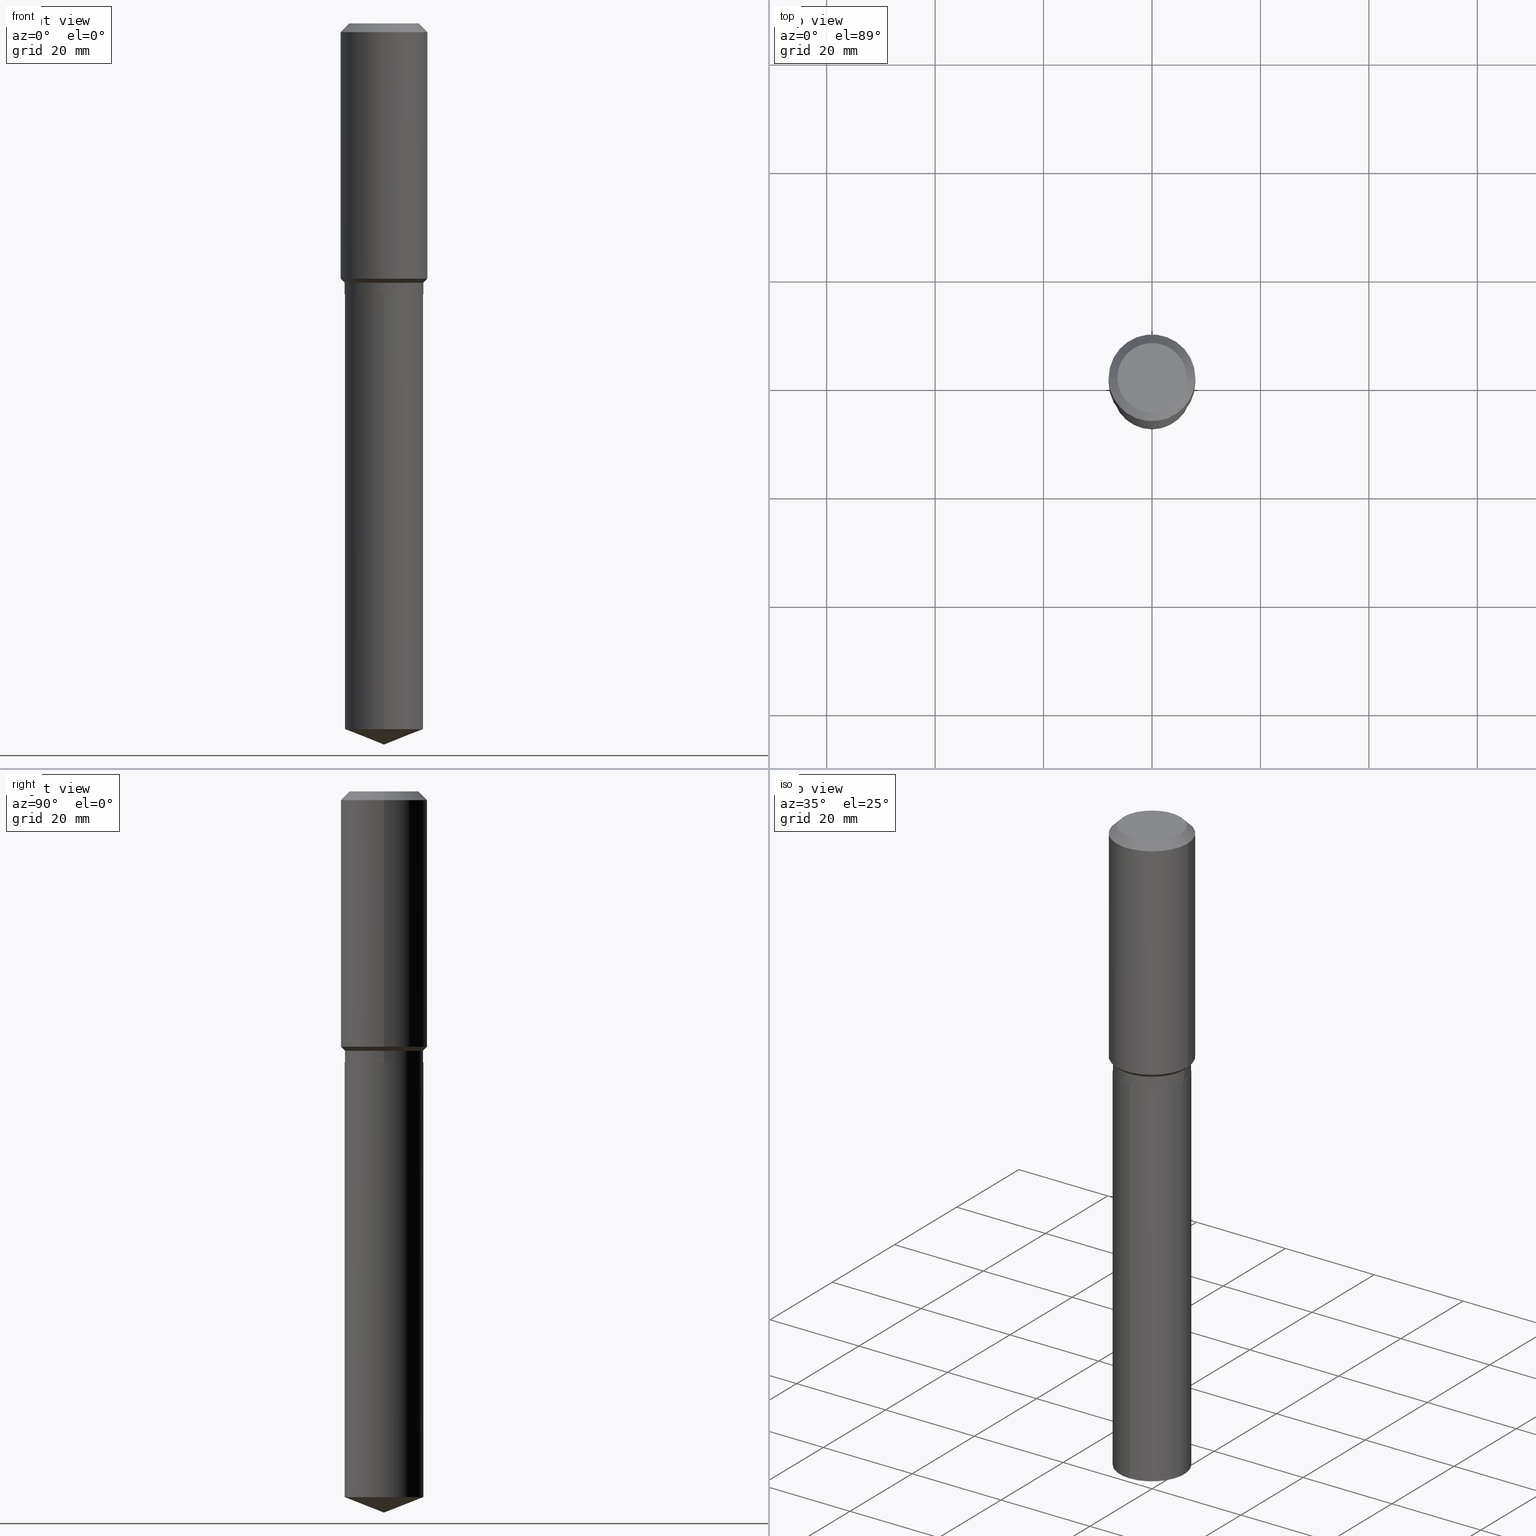
[diagram: canonical four-view strip — front | top / right | iso, engineering-drawing reading convention]
A machine part, canonical four-view strip (front | top / right | iso — engineering-drawing reading convention). The complete STEP part file that produces these views, byte-faithful:
ISO-10303-21;
HEADER;
FILE_DESCRIPTION (( 'STEP AP203' ),
    '1' );
FILE_NAME ('66600.STEP',
    '2024-04-25T01:45:45',
    ( '' ),
    ( '' ),
    'SwSTEP 2.0',
    'SolidWorks 2023',
    '' );
FILE_SCHEMA (( 'CONFIG_CONTROL_DESIGN' ));
ENDSEC;

DATA;
#1 = ORIENTED_EDGE ( 'NONE', *, *, #22, .F. ) ;
#2 = ORIENTED_EDGE ( 'NONE', *, *, #478, .T. ) ;
#3 = VECTOR ( 'NONE', #181, 39.37007874015748143 ) ;
#4 = AXIS2_PLACEMENT_3D ( 'NONE', #250, #357, #217 ) ;
#5 = DATE_AND_TIME ( #417, #148 ) ;
#6 = ORIENTED_EDGE ( 'NONE', *, *, #393, .F. ) ;
#7 = CALENDAR_DATE ( 2024, 24, 4 ) ;
#8 = ORIENTED_EDGE ( 'NONE', *, *, #483, .T. ) ;
#9 = APPROVAL ( #173, 'UNSPECIFIED' ) ;
#10 = ORIENTED_EDGE ( 'NONE', *, *, #410, .T. ) ;
#11 = FACE_OUTER_BOUND ( 'NONE', #35, .T. ) ;
#12 = ORIENTED_EDGE ( 'NONE', *, *, #485, .T. ) ;
#13 = AXIS2_PLACEMENT_3D ( 'NONE', #252, #286, #219 ) ;
#14 = CALENDAR_DATE ( 2024, 24, 4 ) ;
#15 = DIRECTION ( 'NONE',  ( -6.982962677686265922E-15, -1.000000000000000000, 3.828128209723963046E-15 ) ) ;
#16 = ORIENTED_EDGE ( 'NONE', *, *, #158, .T. ) ;
#17 =( LENGTH_UNIT ( ) NAMED_UNIT ( * ) SI_UNIT ( $, .METRE. ) );
#18 = APPROVAL_STATUS ( 'not_yet_approved' ) ;
#19 = CARTESIAN_POINT ( 'NONE',  ( 4.813416251214202584E-29, -6.872282719244960739E-15, -1.968299999999999272 ) ) ;
#20 = VERTEX_POINT ( 'NONE', #311 ) ;
#21 = PRODUCT ( '66600', '66600', '', ( #308 ) ) ;
#22 = EDGE_CURVE ( 'NONE', #298, #341, #463, .T. ) ;
#23 = DIRECTION ( 'NONE',  ( 0.000000000000000000, 0.000000000000000000, 1.000000000000000000 ) ) ;
#24 = CARTESIAN_POINT ( 'NONE',  ( 2.028244239227331673E-15, 0.2854499999999822180, -5.123558254735715245 ) ) ;
#25 = CIRCLE ( 'NONE', #400, 0.2849499999999999811 ) ;
#26 = CIRCLE ( 'NONE', #156, 0.2854499999999999815 ) ;
#27 = DIRECTION ( 'NONE',  ( -2.445324435619551489E-29, 3.491688085710125580E-15, 1.000000000000000000 ) ) ;
#28 = DIRECTION ( 'NONE',  ( -2.445324435619551208E-29, 3.491688085710125580E-15, 1.000000000000000000 ) ) ;
#29 = DIRECTION ( 'NONE',  ( 2.445468806185136597E-29, -3.491481338843145583E-15, -1.000000000000000000 ) ) ;
#30 = CARTESIAN_POINT ( 'NONE',  ( -0.3149500000000001743, 2.237854346276436774E-15, -1.549218606675783237E-29 ) ) ;
#31 = CC_DESIGN_PERSON_AND_ORGANIZATION_ASSIGNMENT ( #53, #457, ( #379 ) ) ;
#32 = EDGE_LOOP ( 'NONE', ( #16, #201, #152, #85 ) ) ;
#33 = LINE ( 'NONE', #30, #127 ) ;
#34 = AXIS2_PLACEMENT_3D ( 'NONE', #134, #273, #472 ) ;
#35 = EDGE_LOOP ( 'NONE', ( #129, #468, #396, #266 ) ) ;
#36 = AXIS2_PLACEMENT_3D ( 'NONE', #122, #23, #143 ) ;
#37 = ORIENTED_EDGE ( 'NONE', *, *, #381, .T. ) ;
#38 = PERSON_AND_ORGANIZATION_ROLE ( 'design_owner' ) ;
#39 = APPLICATION_PROTOCOL_DEFINITION ( 'international standard', 'config_control_design', 1994, #46 ) ;
#40 = EDGE_CURVE ( 'NONE', #175, #239, #192, .T. ) ;
#41 = VERTEX_POINT ( 'NONE', #71 ) ;
#42 = VECTOR ( 'NONE', #287, 39.37007874015748143 ) ;
#43 = EDGE_LOOP ( 'NONE', ( #70, #79 ) ) ;
#44 = ORIENTED_EDGE ( 'NONE', *, *, #336, .T. ) ;
#45 = ORIENTED_EDGE ( 'NONE', *, *, #376, .T. ) ;
#46 = APPLICATION_CONTEXT ( 'configuration controlled 3d designs of mechanical parts and assemblies' ) ;
#47 = PERSON_AND_ORGANIZATION_ROLE ( 'design_supplier' ) ;
#48 = FACE_OUTER_BOUND ( 'NONE', #202, .T. ) ;
#49 = VECTOR ( 'NONE', #364, 39.37007874015748143 ) ;
#50 = ORIENTED_EDGE ( 'NONE', *, *, #422, .T. ) ;
#51 = LINE ( 'NONE', #402, #360 ) ;
#52 = ORIENTED_EDGE ( 'NONE', *, *, #410, .F. ) ;
#53 = PERSON_AND_ORGANIZATION ( #154, #123 ) ;
#54 = CARTESIAN_POINT ( 'NONE',  ( 4.813416251214202584E-29, -6.872282719244960739E-15, -1.968299999999999272 ) ) ;
#55 = ORIENTED_EDGE ( 'NONE', *, *, #264, .F. ) ;
#56 =( NAMED_UNIT ( * ) PLANE_ANGLE_UNIT ( ) SI_UNIT ( $, .RADIAN. ) );
#57 = CARTESIAN_POINT ( 'NONE',  ( 4.603350480762900433E-29, -6.572364472238336171E-15, -1.882399999999999629 ) ) ;
#58 = ADVANCED_FACE ( 'NONE', ( #283 ), #194, .F. ) ;
#59 = CARTESIAN_POINT ( 'NONE',  ( -8.346861266608468527E-28, 1.191859629935574637E-13, 34.13407874015748433 ) ) ;
#60 = ORIENTED_EDGE ( 'NONE', *, *, #366, .T. ) ;
#61 = DIRECTION ( 'NONE',  ( -2.445468806185136597E-29, 3.491481338843145583E-15, 1.000000000000000000 ) ) ;
#62 = EDGE_CURVE ( 'NONE', #41, #423, #337, .T. ) ;
#63 = ORIENTED_EDGE ( 'NONE', *, *, #162, .T. ) ;
#64 = CLOSED_SHELL ( 'NONE', ( #77, #200, #306, #245, #161 ) ) ;
#65 = DIRECTION ( 'NONE',  ( -2.445468806185136597E-29, 3.491481338843145583E-15, 1.000000000000000000 ) ) ;
#66 = LOCAL_TIME ( 21, 45, 45.00000000000000000, #378 ) ;
#67 = CARTESIAN_POINT ( 'NONE',  ( 2.028244239227331278E-15, 0.2854499999999930981, -1.968300000000000383 ) ) ;
#68 = DIRECTION ( 'NONE',  ( 1.000000000000000000, -6.982962677686265922E-15, 4.876176775795936353E-29 ) ) ;
#69 = LINE ( 'NONE', #362, #114 ) ;
#70 = ORIENTED_EDGE ( 'NONE', *, *, #204, .F. ) ;
#71 = CARTESIAN_POINT ( 'NONE',  ( -1.993286696345419921E-15, -0.2854500000000179671, -5.123558254735712580 ) ) ;
#72 = AXIS2_PLACEMENT_3D ( 'NONE', #444, #221, #447 ) ;
#73 = LINE ( 'NONE', #117, #216 ) ;
#74 = VECTOR ( 'NONE', #28, 39.37007874015748143 ) ;
#75 = DIRECTION ( 'NONE',  ( 1.000000000000000000, -6.982962677686269077E-15, 0.000000000000000000 ) ) ;
#76 = DIRECTION ( 'NONE',  ( -0.7071067811865453523, 2.468850131082234184E-15, -0.7071067811865496822 ) ) ;
#77 = ADVANCED_FACE ( 'NONE', ( #180 ), #112, .T. ) ;
#78 = EDGE_CURVE ( 'NONE', #490, #333, #69, .T. ) ;
#79 = ORIENTED_EDGE ( 'NONE', *, *, #191, .F. ) ;
#80 = EDGE_LOOP ( 'NONE', ( #256, #44 ) ) ;
#81 = AXIS2_PLACEMENT_3D ( 'NONE', #397, #277, #355 ) ;
#82 = EDGE_LOOP ( 'NONE', ( #6, #91, #50, #265 ) ) ;
#83 = PRODUCT_RELATED_PRODUCT_CATEGORY ( 'detail', '', ( #21 ) ) ;
#84 = ORIENTED_EDGE ( 'NONE', *, *, #422, .F. ) ;
#85 = ORIENTED_EDGE ( 'NONE', *, *, #261, .F. ) ;
#86 = APPROVAL_PERSON_ORGANIZATION ( #260, #340, #451 ) ;
#87 = FACE_OUTER_BOUND ( 'NONE', #296, .T. ) ;
#88 = PERSON_AND_ORGANIZATION ( #154, #123 ) ;
#89 = DIRECTION ( 'NONE',  ( -2.445468806185136597E-29, 3.491481338843145583E-15, 1.000000000000000000 ) ) ;
#90 = ORIENTED_EDGE ( 'NONE', *, *, #473, .F. ) ;
#91 = ORIENTED_EDGE ( 'NONE', *, *, #232, .T. ) ;
#92 = DIRECTION ( 'NONE',  ( 1.000000000000000000, -6.982962677686265922E-15, 0.000000000000000000 ) ) ;
#93 = ORIENTED_EDGE ( 'NONE', *, *, #162, .F. ) ;
#94 =( CONVERSION_BASED_UNIT ( 'INCH', #275 ) LENGTH_UNIT ( ) NAMED_UNIT ( #229 ) );
#95 = MANIFOLD_SOLID_BREP ( 'Body-Move/Copy2[1]', #64 ) ;
#96 = APPROVAL_ROLE ( '' ) ;
#97 = LINE ( 'NONE', #391, #3 ) ;
#98 = CYLINDRICAL_SURFACE ( 'NONE', #409, 0.3149500000000001743 ) ;
#99 = CYLINDRICAL_SURFACE ( 'NONE', #233, 0.2854499999999999815 ) ;
#100 = EDGE_LOOP ( 'NONE', ( #209, #130, #168, #226 ) ) ;
#101 = DIRECTION ( 'NONE',  ( 1.000000000000000000, -6.982962677686264344E-15, 0.000000000000000000 ) ) ;
#102 = CARTESIAN_POINT ( 'NONE',  ( 0.3149500000000002298, -8.668649868079754176E-15, -1.852899999999999547 ) ) ;
#103 = AXIS2_PLACEMENT_3D ( 'NONE', #462, #27, #206 ) ;
#104 = CARTESIAN_POINT ( 'NONE',  ( 1.280429205764840004E-28, -1.828166493706166554E-14, -5.235999999999999766 ) ) ;
#105 = DIRECTION ( 'NONE',  ( 1.000000000000000000, -6.982962677686266711E-15, 4.876115136096691995E-29 ) ) ;
#106 = VECTOR ( 'NONE', #183, 39.37007874015748143 ) ;
#107 = CARTESIAN_POINT ( 'NONE',  ( -0.2849499999999999811, -4.847591193696555000E-15, -1.968299999999999272 ) ) ;
#108 = CYLINDRICAL_SURFACE ( 'NONE', #368, 0.2854499999999999815 ) ;
#109 =( NAMED_UNIT ( * ) SI_UNIT ( $, .STERADIAN. ) SOLID_ANGLE_UNIT ( ) );
#110 = ADVANCED_FACE ( 'NONE', ( #153 ), #108, .T. ) ;
#111 = DIRECTION ( 'NONE',  ( -2.445468806185136597E-29, 3.491481338843145583E-15, 1.000000000000000000 ) ) ;
#112 = CYLINDRICAL_SURFACE ( 'NONE', #290, 0.2854499999999999815 ) ;
#113 = EDGE_CURVE ( 'NONE', #138, #377, #33, .T. ) ;
#114 = VECTOR ( 'NONE', #324, 39.37007874015748143 ) ;
#115 = LINE ( 'NONE', #259, #241 ) ;
#116 = VECTOR ( 'NONE', #450, 39.37007874015748143 ) ;
#117 = CARTESIAN_POINT ( 'NONE',  ( -0.3149500000000000077, 1.979355685803558833E-15, -0.06299000000000037902 ) ) ;
#118 = PERSON_AND_ORGANIZATION ( #154, #123 ) ;
#119 = PERSON_AND_ORGANIZATION_ROLE ( 'creator' ) ;
#120 = CC_DESIGN_PERSON_AND_ORGANIZATION_ASSIGNMENT ( #118, #38, ( #21 ) ) ;
#121 = CONICAL_SURFACE ( 'NONE', #348, 0.2854499999999999815, 0.7853981633974511656 ) ;
#122 = CARTESIAN_POINT ( 'NONE',  ( 0.000000000000000000, 0.000000000000000000, 0.000000000000000000 ) ) ;
#123 = ORGANIZATION ( 'UNSPECIFIED', 'UNSPECIFIED', '' ) ;
#124 = PERSON_AND_ORGANIZATION ( #154, #123 ) ;
#125 = FACE_OUTER_BOUND ( 'NONE', #280, .T. ) ;
#126 = PERSON_AND_ORGANIZATION_ROLE ( 'classification_officer' ) ;
#127 = VECTOR ( 'NONE', #220, 39.37007874015748143 ) ;
#128 = ORIENTED_EDGE ( 'NONE', *, *, #22, .T. ) ;
#129 = ORIENTED_EDGE ( 'NONE', *, *, #482, .F. ) ;
#130 = ORIENTED_EDGE ( 'NONE', *, *, #482, .T. ) ;
#131 = DIRECTION ( 'NONE',  ( -2.445468806185136597E-29, 3.491481338843145583E-15, 1.000000000000000000 ) ) ;
#132 = ORIENTED_EDGE ( 'NONE', *, *, #232, .F. ) ;
#133 = DATE_TIME_ROLE ( 'creation_date' ) ;
#134 = CARTESIAN_POINT ( 'NONE',  ( 1.252904636220974538E-28, -1.788946037464417969E-14, -5.123558254735714357 ) ) ;
#135 = LINE ( 'NONE', #139, #160 ) ;
#136 = DIRECTION ( 'NONE',  ( -2.445324435619551489E-29, 3.491688085710125580E-15, 1.000000000000000000 ) ) ;
#137 = CIRCLE ( 'NONE', #267, 0.2849499999999999811 ) ;
#138 = VERTEX_POINT ( 'NONE', #411 ) ;
#139 = CARTESIAN_POINT ( 'NONE',  ( -0.2854499999999999815, -4.544120233011130322E-15, -1.882399999999999629 ) ) ;
#140 = EDGE_LOOP ( 'NONE', ( #304, #271, #269, #346 ) ) ;
#141 = LINE ( 'NONE', #398, #375 ) ;
#142 = CARTESIAN_POINT ( 'NONE',  ( 4.813416251214202584E-29, -6.872282719244960739E-15, -1.968299999999999272 ) ) ;
#143 = DIRECTION ( 'NONE',  ( 1.000000000000000000, 0.000000000000000000, 0.000000000000000000 ) ) ;
#144 = CARTESIAN_POINT ( 'NONE',  ( 0.2849499999999999811, -8.862077934251663082E-15, -1.968299999999999272 ) ) ;
#145 = CARTESIAN_POINT ( 'NONE',  ( 4.813416251214202584E-29, -6.872282719244960739E-15, -1.968299999999999272 ) ) ;
#146 = CONICAL_SURFACE ( 'NONE', #81, 0.3149500000000000077, 0.7853981633974452814 ) ;
#147 = CARTESIAN_POINT ( 'NONE',  ( 4.531209150980438038E-29, -6.469365772742462727E-15, -1.852899999999999547 ) ) ;
#148 = LOCAL_TIME ( 21, 45, 45.00000000000000000, #419 ) ;
#149 = EDGE_CURVE ( 'NONE', #175, #341, #359, .T. ) ;
#150 = CARTESIAN_POINT ( 'NONE',  ( 4.813416251214202584E-29, -6.872282719244960739E-15, -1.968299999999999272 ) ) ;
#151 = EDGE_CURVE ( 'NONE', #351, #458, #469, .T. ) ;
#152 = ORIENTED_EDGE ( 'NONE', *, *, #478, .F. ) ;
#153 = FACE_OUTER_BOUND ( 'NONE', #347, .T. ) ;
#154 = PERSON ( 'UNSPECIFIED', 'UNSPECIFIED', 'UNSPECIFIED', ('UNSPECIFIED'), ('UNSPECIFIED'), ('UNSPECIFIED') ) ;
#155 = CIRCLE ( 'NONE', #34, 0.2854499999999999815 ) ;
#156 = AXIS2_PLACEMENT_3D ( 'NONE', #225, #445, #405 ) ;
#157 = ORIENTED_EDGE ( 'NONE', *, *, #78, .T. ) ;
#158 = EDGE_CURVE ( 'NONE', #239, #138, #459, .T. ) ;
#159 = AXIS2_PLACEMENT_3D ( 'NONE', #145, #136, #15 ) ;
#160 = VECTOR ( 'NONE', #435, 39.37007874015748143 ) ;
#161 = ADVANCED_FACE ( 'NONE', ( #439 ), #403, .F. ) ;
#162 = EDGE_CURVE ( 'NONE', #333, #298, #343, .T. ) ;
#163 = CARTESIAN_POINT ( 'NONE',  ( 4.813416251214202584E-29, -6.872282719244960739E-15, -1.968299999999999272 ) ) ;
#164 = ORIENTED_EDGE ( 'NONE', *, *, #371, .T. ) ;
#165 = ORIENTED_EDGE ( 'NONE', *, *, #371, .F. ) ;
#166 = ADVANCED_FACE ( 'NONE', ( #197 ), #270, .T. ) ;
#167 = CIRCLE ( 'NONE', #350, 0.3149500000000000077 ) ;
#168 = ORIENTED_EDGE ( 'NONE', *, *, #158, .F. ) ;
#169 = EDGE_LOOP ( 'NONE', ( #425, #460, #55, #84 ) ) ;
#170 = DATE_AND_TIME ( #7, #66 ) ;
#171 = EDGE_LOOP ( 'NONE', ( #52, #446, #157, #386 ) ) ;
#172 = PLANE ( 'NONE',  #4 ) ;
#173 = APPROVAL_STATUS ( 'not_yet_approved' ) ;
#174 = ADVANCED_FACE ( 'NONE', ( #392 ), #176, .T. ) ;
#175 = VERTEX_POINT ( 'NONE', #466 ) ;
#176 = CONICAL_SURFACE ( 'NONE', #195, 0.2849499999999999811, 0.7853981633975507526 ) ;
#177 = DIRECTION ( 'NONE',  ( -2.445468806185136597E-29, 3.491481338843145583E-15, 1.000000000000000000 ) ) ;
#178 = CARTESIAN_POINT ( 'NONE',  ( 0.2854499999999999815, -8.863823674921085375E-15, -1.967799999999999327 ) ) ;
#179 = CARTESIAN_POINT ( 'NONE',  ( 0.3149500000000000077, -2.419212504871020909E-15, -0.06299000000000037902 ) ) ;
#180 = FACE_OUTER_BOUND ( 'NONE', #169, .T. ) ;
#181 = DIRECTION ( 'NONE',  ( -2.445468806185136877E-29, 3.491481338843145188E-15, 1.000000000000000000 ) ) ;
#182 = DESIGN_CONTEXT ( 'detailed design', #186, 'design' ) ;
#183 = DIRECTION ( 'NONE',  ( -0.7071067811866199593, 7.493145998870616062E-15, 0.7071067811864750752 ) ) ;
#184 = DIRECTION ( 'NONE',  ( 2.445324435619551208E-29, -3.491688085710125580E-15, -1.000000000000000000 ) ) ;
#185 = ADVANCED_FACE ( 'NONE', ( #11 ), #121, .T. ) ;
#186 = APPLICATION_CONTEXT ( 'configuration controlled 3d designs of mechanical parts and assemblies' ) ;
#187 = EDGE_LOOP ( 'NONE', ( #373, #10, #93, #374 ) ) ;
#188 = DIRECTION ( 'NONE',  ( 1.000000000000000000, -6.982962677686265922E-15, 0.000000000000000000 ) ) ;
#189 = CC_DESIGN_APPROVAL ( #9, ( #379 ) ) ;
#190 = DIRECTION ( 'NONE',  ( -2.445468806185136877E-29, 3.491481338843145188E-15, 1.000000000000000000 ) ) ;
#191 = EDGE_CURVE ( 'NONE', #20, #490, #137, .T. ) ;
#192 = LINE ( 'NONE', #334, #49 ) ;
#193 = ADVANCED_BREP_SHAPE_REPRESENTATION ( '66600', ( #95, #420, #36 ), #471 ) ;
#194 = PLANE ( 'NONE',  #452 ) ;
#195 = AXIS2_PLACEMENT_3D ( 'NONE', #19, #89, #274 ) ;
#196 = VECTOR ( 'NONE', #361, 39.37007874015748854 ) ;
#197 = FACE_OUTER_BOUND ( 'NONE', #32, .T. ) ;
#198 = ADVANCED_FACE ( 'NONE', ( #87 ), #98, .T. ) ;
#199 = CONICAL_SURFACE ( 'NONE', #297, 0.3149500000000000077, 0.7853981633974452814 ) ;
#200 = ADVANCED_FACE ( 'NONE', ( #125 ), #388, .T. ) ;
#201 = ORIENTED_EDGE ( 'NONE', *, *, #113, .T. ) ;
#202 = EDGE_LOOP ( 'NONE', ( #385, #164, #132 ) ) ;
#203 = DIRECTION ( 'NONE',  ( 1.000000000000000000, -6.982962677686265922E-15, 4.876176775795935232E-29 ) ) ;
#204 = EDGE_CURVE ( 'NONE', #490, #20, #25, .T. ) ;
#205 = PERSON_AND_ORGANIZATION ( #154, #123 ) ;
#206 = DIRECTION ( 'NONE',  ( -6.982962677686266711E-15, -1.000000000000000000, 3.498627837350051949E-15 ) ) ;
#207 = CONICAL_SURFACE ( 'NONE', #103, 99.94676754583861111, 1.195550537616114850 ) ;
#208 = EDGE_LOOP ( 'NONE', ( #1, #60, #45, #382 ) ) ;
#209 = ORIENTED_EDGE ( 'NONE', *, *, #149, .T. ) ;
#210 = APPROVAL_DATE_TIME ( #389, #342 ) ;
#211 = DIRECTION ( 'NONE',  ( 1.000000000000000000, -6.982962677686265922E-15, 0.000000000000000000 ) ) ;
#212 = DIRECTION ( 'NONE',  ( -2.445324435619551489E-29, 3.491688085710125580E-15, 1.000000000000000000 ) ) ;
#213 = FACE_OUTER_BOUND ( 'NONE', #434, .T. ) ;
#214 = FACE_OUTER_BOUND ( 'NONE', #82, .T. ) ;
#215 = AXIS2_PLACEMENT_3D ( 'NONE', #456, #316, #303 ) ;
#216 = VECTOR ( 'NONE', #76, 39.37007874015748143 ) ;
#217 = DIRECTION ( 'NONE',  ( -1.000000000000000000, 6.982962677686265922E-15, -4.876176775795935793E-29 ) ) ;
#218 = DIRECTION ( 'NONE',  ( -2.438088387897960049E-29, 3.491481338843145188E-15, 1.000000000000000000 ) ) ;
#219 = DIRECTION ( 'NONE',  ( 1.000000000000000000, -6.982962677686266711E-15, 0.000000000000000000 ) ) ;
#220 = DIRECTION ( 'NONE',  ( -2.445468806185136877E-29, 3.491481338843145188E-15, 1.000000000000000000 ) ) ;
#221 = DIRECTION ( 'NONE',  ( -2.445324435619551489E-29, 3.491688085710125580E-15, 1.000000000000000000 ) ) ;
#222 = CC_DESIGN_DATE_AND_TIME_ASSIGNMENT ( #170, #133, ( #424 ) ) ;
#223 = CIRCLE ( 'NONE', #301, 0.2854499999999999815 ) ;
#224 = DIRECTION ( 'NONE',  ( 1.000000000000000000, -6.982962677686265922E-15, 4.876176775795935793E-29 ) ) ;
#225 = CARTESIAN_POINT ( 'NONE',  ( 4.812193516811110904E-29, -6.870536978575539236E-15, -1.967799999999999327 ) ) ;
#226 = ORIENTED_EDGE ( 'NONE', *, *, #40, .F. ) ;
#227 = AXIS2_PLACEMENT_3D ( 'NONE', #54, #313, #246 ) ;
#228 = ORIENTED_EDGE ( 'NONE', *, *, #354, .F. ) ;
#229 = DIMENSIONAL_EXPONENTS ( 1.000000000000000000, 0.000000000000000000, 0.000000000000000000, 0.000000000000000000, 0.000000000000000000, 0.000000000000000000, 0.000000000000000000 ) ;
#230 = VERTEX_POINT ( 'NONE', #67 ) ;
#231 = AXIS2_PLACEMENT_3D ( 'NONE', #59, #212, #356 ) ;
#232 = EDGE_CURVE ( 'NONE', #423, #41, #155, .T. ) ;
#233 = AXIS2_PLACEMENT_3D ( 'NONE', #395, #61, #68 ) ;
#234 = ORIENTED_EDGE ( 'NONE', *, *, #376, .F. ) ;
#235 = PERSON_AND_ORGANIZATION ( #154, #123 ) ;
#236 = CARTESIAN_POINT ( 'NONE',  ( 4.813416251214202584E-29, -6.872282719244960739E-15, -1.968299999999999272 ) ) ;
#237 = CC_DESIGN_DATE_AND_TIME_ASSIGNMENT ( #461, #276, ( #415 ) ) ;
#238 = ADVANCED_FACE ( 'NONE', ( #479 ), #278, .T. ) ;
#239 = VERTEX_POINT ( 'NONE', #102 ) ;
#240 = SECURITY_CLASSIFICATION_LEVEL ( 'unclassified' ) ;
#241 = VECTOR ( 'NONE', #190, 39.37007874015748143 ) ;
#242 = VERTEX_POINT ( 'NONE', #307 ) ;
#243 = DIRECTION ( 'NONE',  ( -6.982962677686265922E-15, -1.000000000000000000, 3.828128209723963046E-15 ) ) ;
#244 = CARTESIAN_POINT ( 'NONE',  ( 0.000000000000000000, 0.000000000000000000, 0.000000000000000000 ) ) ;
#245 = ADVANCED_FACE ( 'NONE', ( #214 ), #358, .T. ) ;
#246 = DIRECTION ( 'NONE',  ( 1.000000000000000000, -6.982962677686268288E-15, 0.000000000000000000 ) ) ;
#247 = LINE ( 'NONE', #107, #106 ) ;
#248 = DIRECTION ( 'NONE',  ( 1.000000000000000000, -6.982962677686268288E-15, 0.000000000000000000 ) ) ;
#249 = CIRCLE ( 'NONE', #430, 0.2854499999999999815 ) ;
#250 = CARTESIAN_POINT ( 'NONE',  ( -4.713871149261284790E-47, 6.730158695841843144E-33, 1.927594061857935750E-18 ) ) ;
#251 = DIRECTION ( 'NONE',  ( 1.000000000000000000, -6.982962677686264344E-15, 0.000000000000000000 ) ) ;
#252 = CARTESIAN_POINT ( 'NONE',  ( 1.540400801016026505E-30, -2.199284095337310628E-16, -0.06299000000000037902 ) ) ;
#253 = CARTESIAN_POINT ( 'NONE',  ( 4.813416251214202584E-29, -6.872282719244960739E-15, -1.968299999999999272 ) ) ;
#254 = DIRECTION ( 'NONE',  ( 6.982962677686265922E-15, 1.000000000000000000, -3.491688085710125580E-15 ) ) ;
#255 = AXIS2_PLACEMENT_3D ( 'NONE', #288, #406, #251 ) ;
#256 = ORIENTED_EDGE ( 'NONE', *, *, #264, .T. ) ;
#257 = CIRCLE ( 'NONE', #449, 0.2519600000000000173 ) ;
#258 = CARTESIAN_POINT ( 'NONE',  ( -0.3149500000000000077, -1.106792744861659912E-15, -0.06299000000000037902 ) ) ;
#259 = CARTESIAN_POINT ( 'NONE',  ( 0.2854499999999999815, -1.993286696345544561E-15, 1.391904660650949962E-29 ) ) ;
#260 = PERSON_AND_ORGANIZATION ( #154, #123 ) ;
#261 = EDGE_CURVE ( 'NONE', #239, #413, #97, .T. ) ;
#262 = AXIS2_PLACEMENT_3D ( 'NONE', #150, #184, #254 ) ;
#263 = ORIENTED_EDGE ( 'NONE', *, *, #149, .F. ) ;
#264 = EDGE_CURVE ( 'NONE', #242, #230, #249, .T. ) ;
#265 = ORIENTED_EDGE ( 'NONE', *, *, #336, .F. ) ;
#266 = ORIENTED_EDGE ( 'NONE', *, *, #381, .F. ) ;
#267 = AXIS2_PLACEMENT_3D ( 'NONE', #236, #433, #309 ) ;
#268 = CC_DESIGN_APPROVAL ( #340, ( #424 ) ) ;
#269 = ORIENTED_EDGE ( 'NONE', *, *, #354, .T. ) ;
#270 = CYLINDRICAL_SURFACE ( 'NONE', #215, 0.3149500000000001743 ) ;
#271 = ORIENTED_EDGE ( 'NONE', *, *, #387, .F. ) ;
#272 = ORIENTED_EDGE ( 'NONE', *, *, #113, .F. ) ;
#273 = DIRECTION ( 'NONE',  ( -2.445324435619551489E-29, 3.491688085710125580E-15, 1.000000000000000000 ) ) ;
#274 = DIRECTION ( 'NONE',  ( 1.000000000000000000, -6.982962677686268288E-15, 0.000000000000000000 ) ) ;
#275 = LENGTH_MEASURE_WITH_UNIT ( LENGTH_MEASURE( 0.02539999999999999897 ), #17 );
#276 = DATE_TIME_ROLE ( 'classification_date' ) ;
#277 = DIRECTION ( 'NONE',  ( 2.445468806185136597E-29, -3.491481338843145583E-15, -1.000000000000000000 ) ) ;
#278 = CONICAL_SURFACE ( 'NONE', #489, 0.2854499999999999815, 0.7853981633974511656 ) ;
#279 = CARTESIAN_POINT ( 'NONE',  ( 4.603350480762900433E-29, -6.572364472238336171E-15, -1.882399999999999629 ) ) ;
#280 = EDGE_LOOP ( 'NONE', ( #165, #8, #318 ) ) ;
#281 = FACE_OUTER_BOUND ( 'NONE', #208, .T. ) ;
#282 = DIRECTION ( 'NONE',  ( -2.445324435619551489E-29, 3.491688085710125580E-15, 1.000000000000000000 ) ) ;
#283 = FACE_OUTER_BOUND ( 'NONE', #43, .T. ) ;
#284 = EDGE_CURVE ( 'NONE', #341, #175, #223, .T. ) ;
#285 = CIRCLE ( 'NONE', #414, 0.2854499999999999815 ) ;
#286 = DIRECTION ( 'NONE',  ( -2.445468806185136597E-29, 3.491481338843145583E-15, 1.000000000000000000 ) ) ;
#287 = DIRECTION ( 'NONE',  ( -2.445468806185136877E-29, 3.491481338843145188E-15, 1.000000000000000000 ) ) ;
#288 = CARTESIAN_POINT ( 'NONE',  ( 4.531209150980438038E-29, -6.469365772742462727E-15, -1.852899999999999547 ) ) ;
#289 = DIRECTION ( 'NONE',  ( -2.445468806185136597E-29, 3.491481338843145583E-15, 1.000000000000000000 ) ) ;
#290 = AXIS2_PLACEMENT_3D ( 'NONE', #253, #335, #487 ) ;
#291 = CARTESIAN_POINT ( 'NONE',  ( 1.540400801016026505E-30, -2.199284095337310628E-16, -0.06299000000000037902 ) ) ;
#292 = DIRECTION ( 'NONE',  ( -2.445468806185136597E-29, 3.491481338843145583E-15, 1.000000000000000000 ) ) ;
#293 = APPLICATION_PROTOCOL_DEFINITION ( 'international standard', 'config_control_design', 1994, #186 ) ;
#294 = APPROVAL_DATE_TIME ( #5, #340 ) ;
#295 = CC_DESIGN_PERSON_AND_ORGANIZATION_ASSIGNMENT ( #124, #119, ( #424 ) ) ;
#296 = EDGE_LOOP ( 'NONE', ( #272, #37, #300, #90 ) ) ;
#297 = AXIS2_PLACEMENT_3D ( 'NONE', #291, #29, #317 ) ;
#298 = VERTEX_POINT ( 'NONE', #353 ) ;
#299 = DATE_AND_TIME ( #427, #390 ) ;
#300 = ORIENTED_EDGE ( 'NONE', *, *, #261, .T. ) ;
#301 = AXIS2_PLACEMENT_3D ( 'NONE', #57, #384, #428 ) ;
#302 = ORIENTED_EDGE ( 'NONE', *, *, #387, .T. ) ;
#303 = DIRECTION ( 'NONE',  ( 1.000000000000000000, -6.982962677686265922E-15, 4.876176775795935232E-29 ) ) ;
#304 = ORIENTED_EDGE ( 'NONE', *, *, #485, .F. ) ;
#305 = PERSON_AND_ORGANIZATION ( #154, #123 ) ;
#306 = ADVANCED_FACE ( 'NONE', ( #48 ), #207, .T. ) ;
#307 = CARTESIAN_POINT ( 'NONE',  ( -1.993286696345496441E-15, -0.2854500000000068649, -1.968299999999998162 ) ) ;
#308 = MECHANICAL_CONTEXT ( 'NONE', #46, 'mechanical' ) ;
#309 = DIRECTION ( 'NONE',  ( 1.000000000000000000, -6.982962677686268288E-15, 0.000000000000000000 ) ) ;
#310 = CARTESIAN_POINT ( 'NONE',  ( 1.540400801016026505E-30, -2.199284095337310628E-16, -0.06299000000000037902 ) ) ;
#311 = CARTESIAN_POINT ( 'NONE',  ( -0.2849499999999999811, -4.844941966522444587E-15, -1.968299999999999272 ) ) ;
#312 = CALENDAR_DATE ( 2024, 24, 4 ) ;
#313 = DIRECTION ( 'NONE',  ( -2.445468806185136597E-29, 3.491481338843145583E-15, 1.000000000000000000 ) ) ;
#314 = ADVANCED_FACE ( 'NONE', ( #432 ), #443, .T. ) ;
#315 = UNCERTAINTY_MEASURE_WITH_UNIT (LENGTH_MEASURE( 1.000000000000000082E-05 ), #94, 'distance_accuracy_value', 'NONE');
#316 = DIRECTION ( 'NONE',  ( -2.445468806185136597E-29, 3.491481338843145583E-15, 1.000000000000000000 ) ) ;
#317 = DIRECTION ( 'NONE',  ( -1.000000000000000000, 6.982962677686266711E-15, 0.000000000000000000 ) ) ;
#318 = ORIENTED_EDGE ( 'NONE', *, *, #62, .F. ) ;
#319 = AXIS2_PLACEMENT_3D ( 'NONE', #484, #111, #105 ) ;
#320 = APPROVAL_PERSON_ORGANIZATION ( #235, #342, #96 ) ;
#321 = DIRECTION ( 'NONE',  ( 1.000000000000000000, -6.982962677686266711E-15, 0.000000000000000000 ) ) ;
#322 = DIRECTION ( 'NONE',  ( -2.445468806185136597E-29, 3.491481338843145583E-15, 1.000000000000000000 ) ) ;
#323 = DIRECTION ( 'NONE',  ( -2.445324435619551208E-29, 3.491688085710125580E-15, 1.000000000000000000 ) ) ;
#324 = DIRECTION ( 'NONE',  ( 0.7071067811866199593, -2.468850131083015945E-15, 0.7071067811864750752 ) ) ;
#325 = CARTESIAN_POINT ( 'NONE',  ( 4.813416251214202584E-29, -6.872282719244960739E-15, -1.968299999999999272 ) ) ;
#326 = CC_DESIGN_PERSON_AND_ORGANIZATION_ASSIGNMENT ( #205, #126, ( #415 ) ) ;
#327 = LINE ( 'NONE', #363, #74 ) ;
#328 = CARTESIAN_POINT ( 'NONE',  ( 4.813416251214202584E-29, -6.872282719244960739E-15, -1.968299999999999272 ) ) ;
#329 = CARTESIAN_POINT ( 'NONE',  ( -0.2854499999999999815, -4.693206486179732248E-15, -1.882399999999999629 ) ) ;
#330 = AXIS2_PLACEMENT_3D ( 'NONE', #486, #289, #75 ) ;
#331 = LOCAL_TIME ( 21, 45, 45.00000000000000000, #349 ) ;
#332 = ADVANCED_FACE ( 'NONE', ( #465 ), #146, .T. ) ;
#333 = VERTEX_POINT ( 'NONE', #178 ) ;
#334 = CARTESIAN_POINT ( 'NONE',  ( 0.2854499999999999815, -8.565651168583879943E-15, -1.882399999999999629 ) ) ;
#335 = DIRECTION ( 'NONE',  ( -2.445324435619551489E-29, 3.491688085710125580E-15, 1.000000000000000000 ) ) ;
#336 = EDGE_CURVE ( 'NONE', #230, #242, #285, .T. ) ;
#337 = CIRCLE ( 'NONE', #72, 0.2854499999999999815 ) ;
#338 = APPROVAL_PERSON_ORGANIZATION ( #88, #9, #345 ) ;
#339 = APPROVAL_STATUS ( 'not_yet_approved' ) ;
#340 = APPROVAL ( #339, 'UNSPECIFIED' ) ;
#341 = VERTEX_POINT ( 'NONE', #329 ) ;
#342 = APPROVAL ( #18, 'UNSPECIFIED' ) ;
#343 = CIRCLE ( 'NONE', #330, 0.2854499999999999815 ) ;
#344 = CIRCLE ( 'NONE', #401, 0.3149500000000002298 ) ;
#345 = APPROVAL_ROLE ( '' ) ;
#346 = ORIENTED_EDGE ( 'NONE', *, *, #473, .T. ) ;
#347 = EDGE_LOOP ( 'NONE', ( #63, #128, #263, #234 ) ) ;
#348 = AXIS2_PLACEMENT_3D ( 'NONE', #279, #131, #92 ) ;
#349 = COORDINATED_UNIVERSAL_TIME_OFFSET ( 5, 0, .BEHIND. ) ;
#350 = AXIS2_PLACEMENT_3D ( 'NONE', #310, #65, #321 ) ;
#351 = VERTEX_POINT ( 'NONE', #372 ) ;
#352 = APPROVAL_DATE_TIME ( #299, #9 ) ;
#353 = CARTESIAN_POINT ( 'NONE',  ( -0.2854499999999999815, -4.693206486179732248E-15, -1.967799999999999327 ) ) ;
#354 = EDGE_CURVE ( 'NONE', #458, #377, #73, .T. ) ;
#355 = DIRECTION ( 'NONE',  ( -1.000000000000000000, 6.982962677686266711E-15, 0.000000000000000000 ) ) ;
#356 = DIRECTION ( 'NONE',  ( -6.982962677686266711E-15, -1.000000000000000000, 3.498627837350051949E-15 ) ) ;
#357 = DIRECTION ( 'NONE',  ( 2.438088387897960049E-29, -3.491481338843145188E-15, -1.000000000000000000 ) ) ;
#358 = CYLINDRICAL_SURFACE ( 'NONE', #159, 0.2854499999999999815 ) ;
#359 = CIRCLE ( 'NONE', #481, 0.2854499999999999815 ) ;
#360 = VECTOR ( 'NONE', #429, 39.37007874015748143 ) ;
#361 = DIRECTION ( 'NONE',  ( 6.611014441532053967E-15, 0.9304175679820254619, 0.3665012267242948041 ) ) ;
#362 = CARTESIAN_POINT ( 'NONE',  ( 0.2849499999999999811, -8.862077934251663082E-15, -1.968299999999999272 ) ) ;
#363 = CARTESIAN_POINT ( 'NONE',  ( 2.028244239227253575E-15, 0.2854499999999931537, -1.968300000000000383 ) ) ;
#364 = DIRECTION ( 'NONE',  ( 0.7071067811865495711, -2.468850131082277965E-15, 0.7071067811865454633 ) ) ;
#365 = DIRECTION ( 'NONE',  ( 1.000000000000000000, -6.982962677686265922E-15, 4.876176775795936353E-29 ) ) ;
#366 = EDGE_CURVE ( 'NONE', #298, #333, #26, .T. ) ;
#367 = LINE ( 'NONE', #448, #116 ) ;
#368 = AXIS2_PLACEMENT_3D ( 'NONE', #399, #404, #365 ) ;
#369 = CIRCLE ( 'NONE', #13, 0.3149500000000000077 ) ;
#370 = CARTESIAN_POINT ( 'NONE',  ( -0.2854499999999999815, 2.028244239227205849E-15, -1.404110021513262784E-29 ) ) ;
#371 = EDGE_CURVE ( 'NONE', #437, #41, #367, .T. ) ;
#372 = CARTESIAN_POINT ( 'NONE',  ( 0.2519600000000000173, -2.054606664725195058E-15, 3.855188123729206640E-18 ) ) ;
#373 = ORIENTED_EDGE ( 'NONE', *, *, #204, .T. ) ;
#374 = ORIENTED_EDGE ( 'NONE', *, *, #78, .F. ) ;
#375 = VECTOR ( 'NONE', #323, 39.37007874015748143 ) ;
#376 = EDGE_CURVE ( 'NONE', #333, #175, #115, .T. ) ;
#377 = VERTEX_POINT ( 'NONE', #258 ) ;
#378 = COORDINATED_UNIVERSAL_TIME_OFFSET ( 5, 0, .BEHIND. ) ;
#379 = PRODUCT_DEFINITION_FORMATION_WITH_SPECIFIED_SOURCE ( 'ANY', '', #21, .NOT_KNOWN. ) ;
#380 = ADVANCED_FACE ( 'NONE', ( #412 ), #199, .T. ) ;
#381 = EDGE_CURVE ( 'NONE', #138, #239, #344, .T. ) ;
#382 = ORIENTED_EDGE ( 'NONE', *, *, #284, .F. ) ;
#383 = COORDINATED_UNIVERSAL_TIME_OFFSET ( 5, 0, .BEHIND. ) ;
#384 = DIRECTION ( 'NONE',  ( -2.445468806185136597E-29, 3.491481338843145583E-15, 1.000000000000000000 ) ) ;
#385 = ORIENTED_EDGE ( 'NONE', *, *, #483, .F. ) ;
#386 = ORIENTED_EDGE ( 'NONE', *, *, #366, .F. ) ;
#387 = EDGE_CURVE ( 'NONE', #458, #351, #257, .T. ) ;
#388 = CONICAL_SURFACE ( 'NONE', #231, 99.94676754583861111, 1.195550537616114850 ) ;
#389 = DATE_AND_TIME ( #312, #454 ) ;
#390 = LOCAL_TIME ( 21, 45, 45.00000000000000000, #383 ) ;
#391 = CARTESIAN_POINT ( 'NONE',  ( 0.3149500000000001743, -2.199284095337290660E-15, 1.535751875536930690E-29 ) ) ;
#392 = FACE_OUTER_BOUND ( 'NONE', #171, .T. ) ;
#393 = EDGE_CURVE ( 'NONE', #423, #230, #327, .T. ) ;
#394 = DIRECTION ( 'NONE',  ( -2.445468806185136597E-29, 3.491481338843145583E-15, 1.000000000000000000 ) ) ;
#395 = CARTESIAN_POINT ( 'NONE',  ( 0.000000000000000000, 0.000000000000000000, 0.000000000000000000 ) ) ;
#396 = ORIENTED_EDGE ( 'NONE', *, *, #40, .T. ) ;
#397 = CARTESIAN_POINT ( 'NONE',  ( 1.540400801016026505E-30, -2.199284095337310628E-16, -0.06299000000000037902 ) ) ;
#398 = CARTESIAN_POINT ( 'NONE',  ( -1.993286696345496441E-15, -0.2854500000000068649, -1.968299999999998162 ) ) ;
#399 = CARTESIAN_POINT ( 'NONE',  ( 0.000000000000000000, 0.000000000000000000, 0.000000000000000000 ) ) ;
#400 = AXIS2_PLACEMENT_3D ( 'NONE', #163, #292, #248 ) ;
#401 = AXIS2_PLACEMENT_3D ( 'NONE', #147, #177, #101 ) ;
#402 = CARTESIAN_POINT ( 'NONE',  ( 0.3149500000000000077, -2.380642253931875190E-15, -0.06299000000000037902 ) ) ;
#403 = PLANE ( 'NONE',  #262 ) ;
#404 = DIRECTION ( 'NONE',  ( -2.445468806185136597E-29, 3.491481338843145583E-15, 1.000000000000000000 ) ) ;
#405 = DIRECTION ( 'NONE',  ( 1.000000000000000000, -6.982962677686269077E-15, 0.000000000000000000 ) ) ;
#406 = DIRECTION ( 'NONE',  ( -2.445468806185136597E-29, 3.491481338843145583E-15, 1.000000000000000000 ) ) ;
#407 = ADVANCED_FACE ( 'NONE', ( #213 ), #172, .F. ) ;
#408 = PRODUCT_DEFINITION_SHAPE ( 'NONE', 'NONE',  #424 ) ;
#409 = AXIS2_PLACEMENT_3D ( 'NONE', #244, #394, #203 ) ;
#410 = EDGE_CURVE ( 'NONE', #20, #298, #247, .T. ) ;
#411 = CARTESIAN_POINT ( 'NONE',  ( -0.3149500000000002298, -4.231511426466025954E-15, -1.852899999999999547 ) ) ;
#412 = FACE_OUTER_BOUND ( 'NONE', #455, .T. ) ;
#413 = VERTEX_POINT ( 'NONE', #179 ) ;
#414 = AXIS2_PLACEMENT_3D ( 'NONE', #142, #282, #440 ) ;
#415 = SECURITY_CLASSIFICATION ( '', '', #240 ) ;
#416 = ORIENTED_EDGE ( 'NONE', *, *, #151, .T. ) ;
#417 = CALENDAR_DATE ( 2024, 24, 4 ) ;
#418 = ADVANCED_FACE ( 'NONE', ( #281 ), #99, .T. ) ;
#419 = COORDINATED_UNIVERSAL_TIME_OFFSET ( 5, 0, .BEHIND. ) ;
#420 = MANIFOLD_SOLID_BREP ( 'Body-Move/Copy2[2]', #488 ) ;
#421 = CC_DESIGN_APPROVAL ( #342, ( #415 ) ) ;
#422 = EDGE_CURVE ( 'NONE', #41, #242, #141, .T. ) ;
#423 = VERTEX_POINT ( 'NONE', #24 ) ;
#424 = PRODUCT_DEFINITION ( 'UNKNOWN', '', #379, #182 ) ;
#425 = ORIENTED_EDGE ( 'NONE', *, *, #62, .T. ) ;
#426 = CC_DESIGN_PERSON_AND_ORGANIZATION_ASSIGNMENT ( #305, #47, ( #379 ) ) ;
#427 = CALENDAR_DATE ( 2024, 24, 4 ) ;
#428 = DIRECTION ( 'NONE',  ( 1.000000000000000000, -6.982962677686265922E-15, 0.000000000000000000 ) ) ;
#429 = DIRECTION ( 'NONE',  ( 0.7071067811865453523, -7.319954787623248157E-15, -0.7071067811865496822 ) ) ;
#430 = AXIS2_PLACEMENT_3D ( 'NONE', #325, #436, #243 ) ;
#431 = CC_DESIGN_SECURITY_CLASSIFICATION ( #415, ( #379 ) ) ;
#432 = FACE_OUTER_BOUND ( 'NONE', #187, .T. ) ;
#433 = DIRECTION ( 'NONE',  ( -2.445468806185136597E-29, 3.491481338843145583E-15, 1.000000000000000000 ) ) ;
#434 = EDGE_LOOP ( 'NONE', ( #302, #416 ) ) ;
#435 = DIRECTION ( 'NONE',  ( -0.7071067811865495711, 7.493145998870362049E-15, 0.7071067811865454633 ) ) ;
#436 = DIRECTION ( 'NONE',  ( -2.445324435619551489E-29, 3.491688085710125580E-15, 1.000000000000000000 ) ) ;
#437 = VERTEX_POINT ( 'NONE', #480 ) ;
#438 = DIRECTION ( 'NONE',  ( 1.000000000000000000, -6.982962677686266711E-15, 4.876115136096691995E-29 ) ) ;
#439 = FACE_OUTER_BOUND ( 'NONE', #80, .T. ) ;
#440 = DIRECTION ( 'NONE',  ( -6.982962677686265922E-15, -1.000000000000000000, 3.828128209723963046E-15 ) ) ;
#441 = CARTESIAN_POINT ( 'NONE',  ( -9.427742298522569579E-47, 1.346031739168368629E-32, 3.855188123715871501E-18 ) ) ;
#442 = DIRECTION ( 'NONE',  ( -2.445468806185136597E-29, 3.491481338843145583E-15, 1.000000000000000000 ) ) ;
#443 = CONICAL_SURFACE ( 'NONE', #227, 0.2849499999999999811, 0.7853981633975507526 ) ;
#444 = CARTESIAN_POINT ( 'NONE',  ( 1.252904636220974538E-28, -1.788946037464417969E-14, -5.123558254735714357 ) ) ;
#445 = DIRECTION ( 'NONE',  ( -2.445468806185136597E-29, 3.491481338843145583E-15, 1.000000000000000000 ) ) ;
#446 = ORIENTED_EDGE ( 'NONE', *, *, #191, .T. ) ;
#447 = DIRECTION ( 'NONE',  ( -6.982962677686265922E-15, -1.000000000000000000, 3.828128209723963046E-15 ) ) ;
#448 = CARTESIAN_POINT ( 'NONE',  ( 1.280371874490396796E-28, -1.828247881677821696E-14, -5.235999999999999766 ) ) ;
#449 = AXIS2_PLACEMENT_3D ( 'NONE', #441, #467, #438 ) ;
#450 = DIRECTION ( 'NONE',  ( -6.497071151882108003E-15, -0.9304175679820229083, 0.3665012267243014099 ) ) ;
#451 = APPROVAL_ROLE ( '' ) ;
#452 = AXIS2_PLACEMENT_3D ( 'NONE', #328, #218, #224 ) ;
#453 = ORIENTED_EDGE ( 'NONE', *, *, #151, .F. ) ;
#454 = LOCAL_TIME ( 21, 45, 45.00000000000000000, #470 ) ;
#455 = EDGE_LOOP ( 'NONE', ( #453, #12, #2, #228 ) ) ;
#456 = CARTESIAN_POINT ( 'NONE',  ( 0.000000000000000000, 0.000000000000000000, 0.000000000000000000 ) ) ;
#457 = PERSON_AND_ORGANIZATION_ROLE ( 'creator' ) ;
#458 = VERTEX_POINT ( 'NONE', #476 ) ;
#459 = CIRCLE ( 'NONE', #255, 0.3149500000000002298 ) ;
#460 = ORIENTED_EDGE ( 'NONE', *, *, #393, .T. ) ;
#461 = DATE_AND_TIME ( #14, #331 ) ;
#462 = CARTESIAN_POINT ( 'NONE',  ( -8.346861266608468527E-28, 1.191859629935574637E-13, 34.13407874015748433 ) ) ;
#463 = LINE ( 'NONE', #370, #42 ) ;
#464 = SHAPE_DEFINITION_REPRESENTATION ( #408, #193 ) ;
#465 = FACE_OUTER_BOUND ( 'NONE', #140, .T. ) ;
#466 = CARTESIAN_POINT ( 'NONE',  ( 0.2854499999999999815, -8.565651168583879943E-15, -1.882399999999999629 ) ) ;
#467 = DIRECTION ( 'NONE',  ( -2.445468806185136597E-29, 3.491481338843145583E-15, 1.000000000000000000 ) ) ;
#468 = ORIENTED_EDGE ( 'NONE', *, *, #284, .T. ) ;
#469 = CIRCLE ( 'NONE', #319, 0.2519600000000000173 ) ;
#470 = COORDINATED_UNIVERSAL_TIME_OFFSET ( 5, 0, .BEHIND. ) ;
#471 =( GEOMETRIC_REPRESENTATION_CONTEXT ( 3 ) GLOBAL_UNCERTAINTY_ASSIGNED_CONTEXT ( ( #315 ) ) GLOBAL_UNIT_ASSIGNED_CONTEXT ( ( #94, #56, #109 ) ) REPRESENTATION_CONTEXT ( 'NONE', 'WORKASPACE' ) );
#472 = DIRECTION ( 'NONE',  ( -6.982962677686265922E-15, -1.000000000000000000, 3.828128209723963046E-15 ) ) ;
#473 = EDGE_CURVE ( 'NONE', #377, #413, #369, .T. ) ;
#474 = LINE ( 'NONE', #104, #196 ) ;
#475 = CARTESIAN_POINT ( 'NONE',  ( 4.603350480762900433E-29, -6.572364472238336171E-15, -1.882399999999999629 ) ) ;
#476 = CARTESIAN_POINT ( 'NONE',  ( -0.2519600000000000173, 1.869391481036695286E-15, 3.855188123703182704E-18 ) ) ;
#477 = CARTESIAN_POINT ( 'NONE',  ( 4.603350480762900433E-29, -6.572364472238336171E-15, -1.882399999999999629 ) ) ;
#478 = EDGE_CURVE ( 'NONE', #413, #377, #167, .T. ) ;
#479 = FACE_OUTER_BOUND ( 'NONE', #100, .T. ) ;
#480 = CARTESIAN_POINT ( 'NONE',  ( 1.280371874490397021E-28, -1.828247881677821696E-14, -5.235999999999999766 ) ) ;
#481 = AXIS2_PLACEMENT_3D ( 'NONE', #477, #442, #188 ) ;
#482 = EDGE_CURVE ( 'NONE', #341, #138, #135, .T. ) ;
#483 = EDGE_CURVE ( 'NONE', #437, #423, #474, .T. ) ;
#484 = CARTESIAN_POINT ( 'NONE',  ( -9.427742298522569579E-47, 1.346031739168368629E-32, 3.855188123715871501E-18 ) ) ;
#485 = EDGE_CURVE ( 'NONE', #351, #413, #51, .T. ) ;
#486 = CARTESIAN_POINT ( 'NONE',  ( 4.812193516811110904E-29, -6.870536978575539236E-15, -1.967799999999999327 ) ) ;
#487 = DIRECTION ( 'NONE',  ( -6.982962677686265922E-15, -1.000000000000000000, 3.828128209723963046E-15 ) ) ;
#488 = CLOSED_SHELL ( 'NONE', ( #314, #380, #166, #238, #110, #418, #185, #198, #332, #407, #58, #174 ) ) ;
#489 = AXIS2_PLACEMENT_3D ( 'NONE', #475, #322, #211 ) ;
#490 = VERTEX_POINT ( 'NONE', #144 ) ;
ENDSEC;
END-ISO-10303-21;
